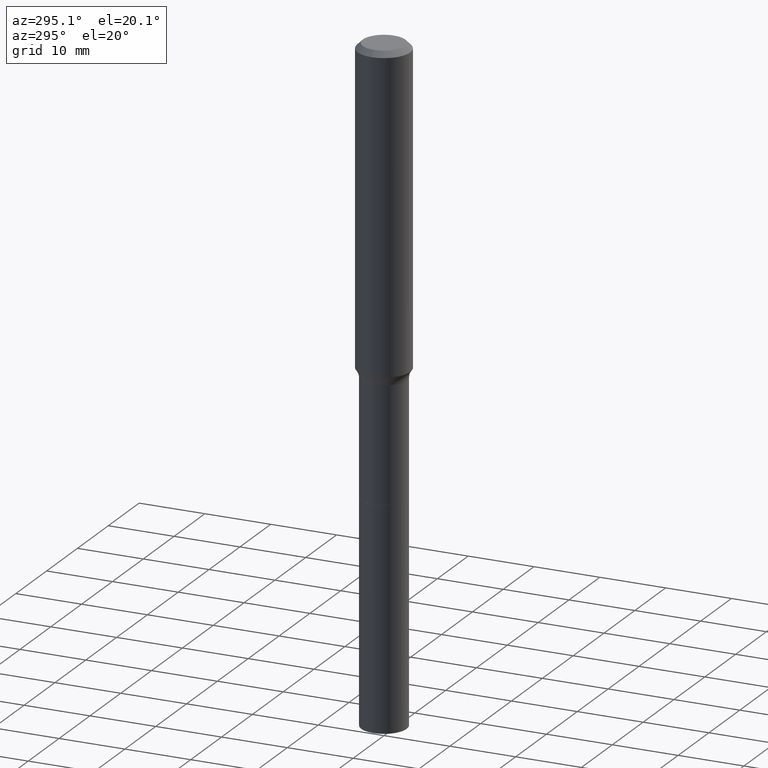
[diagram: clean part render]
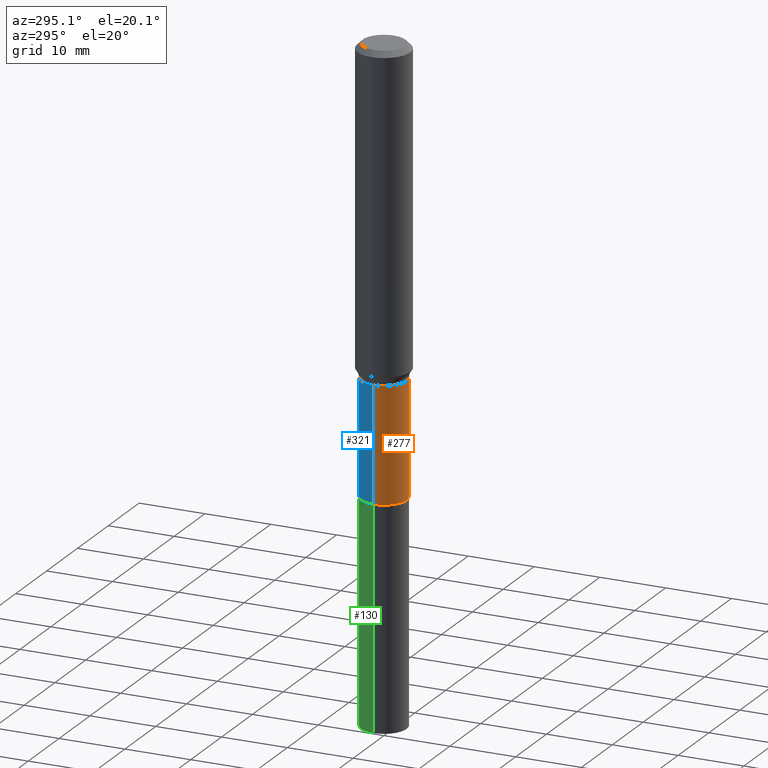
[diagram: same view with three faces highlighted in distinct colors, each labeled with its STEP entity id]
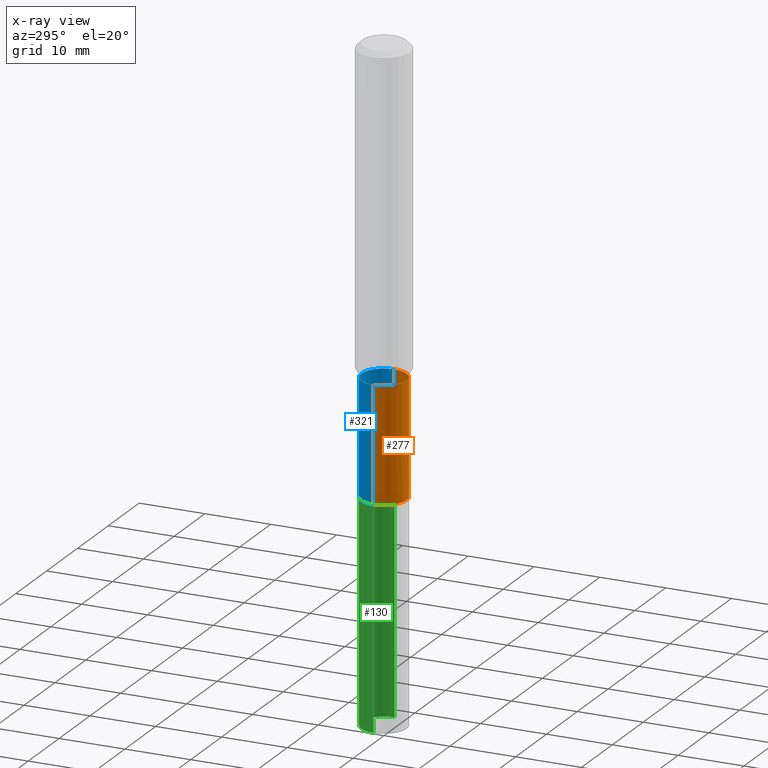
[diagram: x-ray of the same camera — body ghosted, the three highlighted faces saturated]
A machine part, auxiliary view with three faces highlighted in distinct colors.
The next image is the same camera in x-ray (body ghosted, the three faces saturated) — at least one of them is partly hidden behind the body in this view.
Their STEP definitions:

[orange] entity #277 — the highlighted cylindrical surface (edge-blend (fillet) strip) has radius 3.4506 mm, axis along (-0, 0, 1).
#2 = EDGE_LOOP ( 'NONE', ( #474, #445, #450, #211 ) ) ;
#18 = DIRECTION ( 'NONE',  ( -2.445468806185136597E-29, 3.491481338843145583E-15, 1.000000000000000000 ) ) ;
#24 = DIRECTION ( 'NONE',  ( -2.445468806185136597E-29, 3.491481338843145583E-15, 1.000000000000000000 ) ) ;
#59 = CARTESIAN_POINT ( 'NONE',  ( 0.1358499999999999153, -7.683702982392106364E-15, -1.929000000000000048 ) ) ;
#74 = CARTESIAN_POINT ( 'NONE',  ( -0.1358499999999999708, 9.652723065300958949E-16, -6.682373320111287681E-30 ) ) ;
#78 = VERTEX_POINT ( 'NONE', #203 ) ;
#110 = LINE ( 'NONE', #74, #243 ) ;
#116 = DIRECTION ( 'NONE',  ( -2.445468806185136877E-29, 3.491481338843145188E-15, 1.000000000000000000 ) ) ;
#128 = VERTEX_POINT ( 'NONE', #248 ) ;
#131 = FACE_OUTER_BOUND ( 'NONE', #2, .T. ) ;
#136 = AXIS2_PLACEMENT_3D ( 'NONE', #295, #24, #180 ) ;
#171 = DIRECTION ( 'NONE',  ( 1.000000000000000000, -6.982962677686265133E-15, 4.876176775795935232E-29 ) ) ;
#178 = CIRCLE ( 'NONE', #136, 0.1358499999999999985 ) ;
#180 = DIRECTION ( 'NONE',  ( 1.000000000000000000, -6.982962677686261189E-15, 0.000000000000000000 ) ) ;
#203 = CARTESIAN_POINT ( 'NONE',  ( 0.1358499999999999985, -1.008758788418561223E-14, -2.617500000000000160 ) ) ;
#211 = ORIENTED_EDGE ( 'NONE', *, *, #283, .F. ) ;
#225 = DIRECTION ( 'NONE',  ( -2.445468806185136597E-29, 3.491481338843145583E-15, 1.000000000000000000 ) ) ;
#243 = VECTOR ( 'NONE', #354, 39.37007874015748143 ) ;
#248 = CARTESIAN_POINT ( 'NONE',  ( -0.1358499999999999153, -6.971737646995084047E-15, -1.929000000000000048 ) ) ;
#249 = CYLINDRICAL_SURFACE ( 'NONE', #358, 0.1358499999999999708 ) ;
#267 = CARTESIAN_POINT ( 'NONE',  ( -0.1358499999999999985, -6.971737646995084047E-15, -2.617500000000000160 ) ) ;
#277 = ADVANCED_FACE ( 'NONE', ( #131 ), #249, .T. ) ;
#283 = EDGE_CURVE ( 'NONE', #128, #291, #303, .T. ) ;
#291 = VERTEX_POINT ( 'NONE', #59 ) ;
#295 = CARTESIAN_POINT ( 'NONE',  ( 6.401014600189594908E-29, -9.138952404421933270E-15, -2.617500000000000160 ) ) ;
#303 = CIRCLE ( 'NONE', #335, 0.1358499999999999153 ) ;
#307 = EDGE_CURVE ( 'NONE', #496, #78, #178, .T. ) ;
#335 = AXIS2_PLACEMENT_3D ( 'NONE', #477, #225, #375 ) ;
#354 = DIRECTION ( 'NONE',  ( -2.445468806185136877E-29, 3.491481338843145188E-15, 1.000000000000000000 ) ) ;
#358 = AXIS2_PLACEMENT_3D ( 'NONE', #366, #18, #171 ) ;
#366 = CARTESIAN_POINT ( 'NONE',  ( 0.000000000000000000, 0.000000000000000000, 0.000000000000000000 ) ) ;
#375 = DIRECTION ( 'NONE',  ( 1.000000000000000000, -6.982962677686265133E-15, 0.000000000000000000 ) ) ;
#394 = CARTESIAN_POINT ( 'NONE',  ( 0.1358499999999999708, -9.486354797636789603E-16, 6.624286149918776493E-30 ) ) ;
#400 = VECTOR ( 'NONE', #116, 39.37007874015748143 ) ;
#431 = LINE ( 'NONE', #394, #400 ) ;
#444 = EDGE_CURVE ( 'NONE', #496, #128, #110, .T. ) ;
#445 = ORIENTED_EDGE ( 'NONE', *, *, #307, .T. ) ;
#450 = ORIENTED_EDGE ( 'NONE', *, *, #516, .T. ) ;
#474 = ORIENTED_EDGE ( 'NONE', *, *, #444, .F. ) ;
#477 = CARTESIAN_POINT ( 'NONE',  ( 4.717309327131129015E-29, -6.735067502628427403E-15, -1.929000000000000048 ) ) ;
#496 = VERTEX_POINT ( 'NONE', #267 ) ;
#516 = EDGE_CURVE ( 'NONE', #78, #291, #431, .T. ) ;

[blue] entity #321 — the highlighted cylindrical surface (edge-blend (fillet) strip) has radius 3.4506 mm, axis along (-0, 0, 1).
#17 = EDGE_CURVE ( 'NONE', #291, #128, #329, .T. ) ;
#21 = CARTESIAN_POINT ( 'NONE',  ( 4.717309327131129015E-29, -6.735067502628427403E-15, -1.929000000000000048 ) ) ;
#59 = CARTESIAN_POINT ( 'NONE',  ( 0.1358499999999999153, -7.683702982392106364E-15, -1.929000000000000048 ) ) ;
#67 = DIRECTION ( 'NONE',  ( 1.000000000000000000, -6.982962677686261189E-15, 0.000000000000000000 ) ) ;
#74 = CARTESIAN_POINT ( 'NONE',  ( -0.1358499999999999708, 9.652723065300958949E-16, -6.682373320111287681E-30 ) ) ;
#78 = VERTEX_POINT ( 'NONE', #203 ) ;
#105 = AXIS2_PLACEMENT_3D ( 'NONE', #330, #107, #67 ) ;
#107 = DIRECTION ( 'NONE',  ( -2.445468806185136597E-29, 3.491481338843145583E-15, 1.000000000000000000 ) ) ;
#110 = LINE ( 'NONE', #74, #243 ) ;
#116 = DIRECTION ( 'NONE',  ( -2.445468806185136877E-29, 3.491481338843145188E-15, 1.000000000000000000 ) ) ;
#128 = VERTEX_POINT ( 'NONE', #248 ) ;
#158 = ORIENTED_EDGE ( 'NONE', *, *, #17, .F. ) ;
#166 = ORIENTED_EDGE ( 'NONE', *, *, #371, .T. ) ;
#176 = DIRECTION ( 'NONE',  ( 1.000000000000000000, -6.982962677686265133E-15, 0.000000000000000000 ) ) ;
#199 = EDGE_LOOP ( 'NONE', ( #166, #328, #158, #399 ) ) ;
#203 = CARTESIAN_POINT ( 'NONE',  ( 0.1358499999999999985, -1.008758788418561223E-14, -2.617500000000000160 ) ) ;
#204 = DIRECTION ( 'NONE',  ( -2.445468806185136597E-29, 3.491481338843145583E-15, 1.000000000000000000 ) ) ;
#221 = AXIS2_PLACEMENT_3D ( 'NONE', #298, #340, #261 ) ;
#238 = AXIS2_PLACEMENT_3D ( 'NONE', #21, #204, #176 ) ;
#243 = VECTOR ( 'NONE', #354, 39.37007874015748143 ) ;
#248 = CARTESIAN_POINT ( 'NONE',  ( -0.1358499999999999153, -6.971737646995084047E-15, -1.929000000000000048 ) ) ;
#261 = DIRECTION ( 'NONE',  ( 1.000000000000000000, -6.982962677686265133E-15, 4.876176775795935232E-29 ) ) ;
#267 = CARTESIAN_POINT ( 'NONE',  ( -0.1358499999999999985, -6.971737646995084047E-15, -2.617500000000000160 ) ) ;
#291 = VERTEX_POINT ( 'NONE', #59 ) ;
#298 = CARTESIAN_POINT ( 'NONE',  ( 0.000000000000000000, 0.000000000000000000, 0.000000000000000000 ) ) ;
#321 = ADVANCED_FACE ( 'NONE', ( #507 ), #419, .T. ) ;
#327 = CIRCLE ( 'NONE', #105, 0.1358499999999999985 ) ;
#328 = ORIENTED_EDGE ( 'NONE', *, *, #444, .T. ) ;
#329 = CIRCLE ( 'NONE', #238, 0.1358499999999999153 ) ;
#330 = CARTESIAN_POINT ( 'NONE',  ( 6.401014600189594908E-29, -9.138952404421933270E-15, -2.617500000000000160 ) ) ;
#340 = DIRECTION ( 'NONE',  ( -2.445468806185136597E-29, 3.491481338843145583E-15, 1.000000000000000000 ) ) ;
#354 = DIRECTION ( 'NONE',  ( -2.445468806185136877E-29, 3.491481338843145188E-15, 1.000000000000000000 ) ) ;
#371 = EDGE_CURVE ( 'NONE', #78, #496, #327, .T. ) ;
#394 = CARTESIAN_POINT ( 'NONE',  ( 0.1358499999999999708, -9.486354797636789603E-16, 6.624286149918776493E-30 ) ) ;
#399 = ORIENTED_EDGE ( 'NONE', *, *, #516, .F. ) ;
#400 = VECTOR ( 'NONE', #116, 39.37007874015748143 ) ;
#419 = CYLINDRICAL_SURFACE ( 'NONE', #221, 0.1358499999999999708 ) ;
#431 = LINE ( 'NONE', #394, #400 ) ;
#444 = EDGE_CURVE ( 'NONE', #496, #128, #110, .T. ) ;
#496 = VERTEX_POINT ( 'NONE', #267 ) ;
#507 = FACE_OUTER_BOUND ( 'NONE', #199, .T. ) ;
#516 = EDGE_CURVE ( 'NONE', #78, #291, #431, .T. ) ;

[green] entity #130 — the highlighted cylindrical surface (edge-blend (fillet) strip) has radius 3.4506 mm, axis along (-0, 0, 1).
#9 = CARTESIAN_POINT ( 'NONE',  ( 0.1358499999999999985, -1.008933362485503452E-14, -2.618000000000000327 ) ) ;
#41 = CARTESIAN_POINT ( 'NONE',  ( -0.1358499999999999985, -1.047805778152831320E-14, -2.618000000000000327 ) ) ;
#71 = CARTESIAN_POINT ( 'NONE',  ( -0.1358500000000001096, -8.175425838561259273E-15, -2.618000000000000327 ) ) ;
#80 = EDGE_CURVE ( 'NONE', #117, #164, #406, .T. ) ;
#87 = VERTEX_POINT ( 'NONE', #9 ) ;
#104 = LINE ( 'NONE', #71, #121 ) ;
#117 = VERTEX_POINT ( 'NONE', #362 ) ;
#121 = VECTOR ( 'NONE', #337, 39.37007874015748143 ) ;
#126 = AXIS2_PLACEMENT_3D ( 'NONE', #495, #452, #501 ) ;
#130 = ADVANCED_FACE ( 'NONE', ( #499 ), #343, .T. ) ;
#155 = ORIENTED_EDGE ( 'NONE', *, *, #212, .F. ) ;
#164 = VERTEX_POINT ( 'NONE', #411 ) ;
#173 = DIRECTION ( 'NONE',  ( -2.445468806185136597E-29, 3.491481338843145583E-15, 1.000000000000000000 ) ) ;
#187 = CARTESIAN_POINT ( 'NONE',  ( 0.1358500000000001096, -1.008933362485503610E-14, -2.618000000000000327 ) ) ;
#193 = AXIS2_PLACEMENT_3D ( 'NONE', #226, #255, #508 ) ;
#212 = EDGE_CURVE ( 'NONE', #117, #87, #379, .T. ) ;
#226 = CARTESIAN_POINT ( 'NONE',  ( 6.402237334592687709E-29, -9.140698145091355562E-15, -2.618000000000000327 ) ) ;
#233 = ORIENTED_EDGE ( 'NONE', *, *, #414, .F. ) ;
#241 = EDGE_LOOP ( 'NONE', ( #319, #369, #233, #155 ) ) ;
#255 = DIRECTION ( 'NONE',  ( -2.445468806185136597E-29, 3.491481338843145583E-15, 1.000000000000000000 ) ) ;
#319 = ORIENTED_EDGE ( 'NONE', *, *, #80, .T. ) ;
#337 = DIRECTION ( 'NONE',  ( -2.445468806185136877E-29, 3.491481338843145188E-15, 1.000000000000000000 ) ) ;
#343 = CYLINDRICAL_SURFACE ( 'NONE', #193, 0.1358500000000001096 ) ;
#360 = CARTESIAN_POINT ( 'NONE',  ( 9.627810689950883669E-29, -1.374596203102546341E-14, -3.937000000000000277 ) ) ;
#362 = CARTESIAN_POINT ( 'NONE',  ( 0.1358500000000002483, -1.469459751078914395E-14, -3.937000000000000277 ) ) ;
#369 = ORIENTED_EDGE ( 'NONE', *, *, #412, .T. ) ;
#379 = LINE ( 'NONE', #187, #475 ) ;
#406 = CIRCLE ( 'NONE', #498, 0.1358500000000002483 ) ;
#411 = CARTESIAN_POINT ( 'NONE',  ( -0.1358500000000002483, -1.047805778152831162E-14, -3.937000000000000277 ) ) ;
#412 = EDGE_CURVE ( 'NONE', #164, #485, #104, .T. ) ;
#414 = EDGE_CURVE ( 'NONE', #87, #485, #511, .T. ) ;
#452 = DIRECTION ( 'NONE',  ( -2.445468806185136597E-29, 3.491481338843145583E-15, 1.000000000000000000 ) ) ;
#475 = VECTOR ( 'NONE', #512, 39.37007874015748143 ) ;
#485 = VERTEX_POINT ( 'NONE', #41 ) ;
#494 = DIRECTION ( 'NONE',  ( 1.000000000000000000, -6.982962677686262766E-15, 0.000000000000000000 ) ) ;
#495 = CARTESIAN_POINT ( 'NONE',  ( 6.402237334592687709E-29, -9.140698145091355562E-15, -2.618000000000000327 ) ) ;
#498 = AXIS2_PLACEMENT_3D ( 'NONE', #360, #173, #494 ) ;
#499 = FACE_OUTER_BOUND ( 'NONE', #241, .T. ) ;
#501 = DIRECTION ( 'NONE',  ( 1.000000000000000000, -6.982962677686261189E-15, 0.000000000000000000 ) ) ;
#508 = DIRECTION ( 'NONE',  ( 1.000000000000000000, -6.982962677686269866E-15, 0.000000000000000000 ) ) ;
#511 = CIRCLE ( 'NONE', #126, 0.1358499999999999985 ) ;
#512 = DIRECTION ( 'NONE',  ( -2.445468806185136877E-29, 3.491481338843145188E-15, 1.000000000000000000 ) ) ;